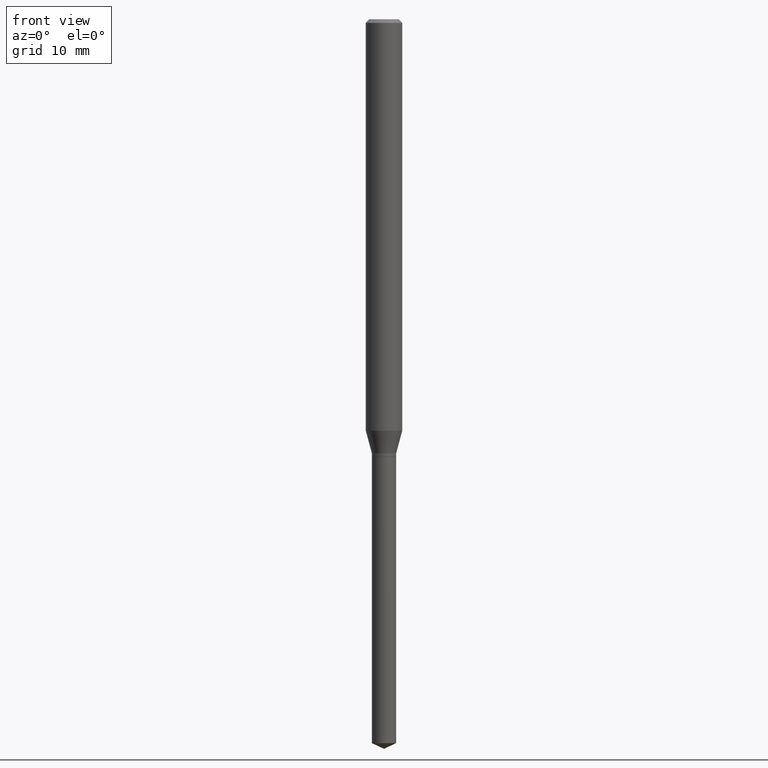
[diagram: clean part render]
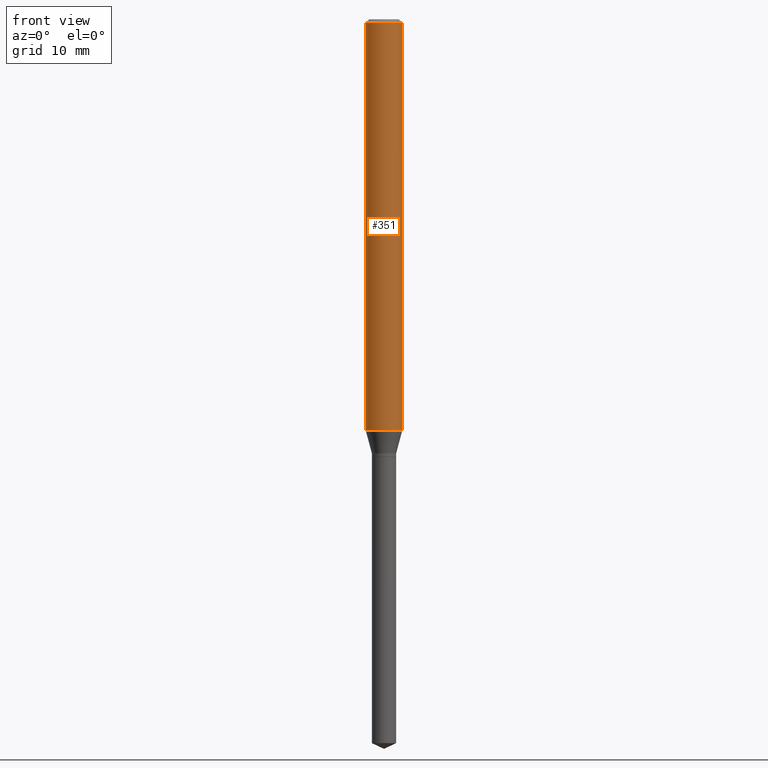
[diagram: same view with one face highlighted and labeled with its STEP entity id]
A machine part, front view. The second image highlights one B-rep face of the part: STEP entity #351.
In plain terms, the highlighted cylindrical surface (edge-blend (fillet) strip) has radius 1.4999 mm, axis along (-0, 0, 1).
Its self-contained STEP definition (entity closure, byte-faithful):
#13 = DIRECTION ( 'NONE',  ( 1.000000000000000000, -6.982962677686271444E-15, 0.000000000000000000 ) ) ;
#18 = CARTESIAN_POINT ( 'NONE',  ( 0.05904999999999999832, -4.535783407291118600E-16, -0.01181000000000007218 ) ) ;
#29 = AXIS2_PLACEMENT_3D ( 'NONE', #124, #384, #46 ) ;
#46 = DIRECTION ( 'NONE',  ( 1.000000000000000000, -6.982962677686266711E-15, 4.876176775795936353E-29 ) ) ;
#78 = CARTESIAN_POINT ( 'NONE',  ( 0.05905000000000015098, -5.062224072313895982E-15, -1.331778599090893245 ) ) ;
#80 = ORIENTED_EDGE ( 'NONE', *, *, #176, .F. ) ;
#83 = EDGE_CURVE ( 'NONE', #383, #328, #166, .T. ) ;
#84 = ORIENTED_EDGE ( 'NONE', *, *, #418, .T. ) ;
#85 = CARTESIAN_POINT ( 'NONE',  ( 3.256823020821720697E-29, -4.649880126196521062E-15, -1.331778599090893245 ) ) ;
#93 = VECTOR ( 'NONE', #309, 39.37007874015748143 ) ;
#117 = DIRECTION ( 'NONE',  ( 1.000000000000000000, -6.982962677686266711E-15, 0.000000000000000000 ) ) ;
#122 = CYLINDRICAL_SURFACE ( 'NONE', #29, 0.05905000000000007465 ) ;
#124 = CARTESIAN_POINT ( 'NONE',  ( 0.000000000000000000, 0.000000000000000000, 0.000000000000000000 ) ) ;
#127 = DIRECTION ( 'NONE',  ( -2.445468806185136597E-29, 3.491481338843145583E-15, 1.000000000000000000 ) ) ;
#166 = LINE ( 'NONE', #280, #444 ) ;
#173 = CARTESIAN_POINT ( 'NONE',  ( -0.05905000000000015098, -4.230304640730180780E-15, -1.331778599090893245 ) ) ;
#176 = EDGE_CURVE ( 'NONE', #328, #349, #363, .T. ) ;
#193 = ORIENTED_EDGE ( 'NONE', *, *, #83, .F. ) ;
#205 = FACE_OUTER_BOUND ( 'NONE', #231, .T. ) ;
#216 = VERTEX_POINT ( 'NONE', #78 ) ;
#221 = CARTESIAN_POINT ( 'NONE',  ( 2.888098660104664204E-31, -4.123439461173780263E-17, -0.01181000000000007218 ) ) ;
#231 = EDGE_LOOP ( 'NONE', ( #193, #84, #336, #80 ) ) ;
#232 = CARTESIAN_POINT ( 'NONE',  ( 0.05905000000000007465, -4.123439461173745750E-16, 2.879382386107504074E-30 ) ) ;
#280 = CARTESIAN_POINT ( 'NONE',  ( -0.05905000000000007465, 4.195754854663396902E-16, -2.904631170795525395E-30 ) ) ;
#309 = DIRECTION ( 'NONE',  ( -2.445468806185136877E-29, 3.491481338843145188E-15, 1.000000000000000000 ) ) ;
#313 = CARTESIAN_POINT ( 'NONE',  ( -0.05904999999999999832, -1.925981774937789113E-15, -0.01181000000000007218 ) ) ;
#315 = DIRECTION ( 'NONE',  ( -2.445468806185136877E-29, 3.491481338843145188E-15, 1.000000000000000000 ) ) ;
#327 = EDGE_CURVE ( 'NONE', #216, #349, #350, .T. ) ;
#328 = VERTEX_POINT ( 'NONE', #313 ) ;
#336 = ORIENTED_EDGE ( 'NONE', *, *, #327, .T. ) ;
#349 = VERTEX_POINT ( 'NONE', #18 ) ;
#350 = LINE ( 'NONE', #232, #93 ) ;
#351 = ADVANCED_FACE ( 'NONE', ( #205 ), #122, .T. ) ;
#358 = AXIS2_PLACEMENT_3D ( 'NONE', #221, #490, #117 ) ;
#363 = CIRCLE ( 'NONE', #358, 0.05904999999999999832 ) ;
#364 = AXIS2_PLACEMENT_3D ( 'NONE', #85, #127, #13 ) ;
#383 = VERTEX_POINT ( 'NONE', #173 ) ;
#384 = DIRECTION ( 'NONE',  ( -2.445468806185136597E-29, 3.491481338843145583E-15, 1.000000000000000000 ) ) ;
#418 = EDGE_CURVE ( 'NONE', #383, #216, #484, .T. ) ;
#444 = VECTOR ( 'NONE', #315, 39.37007874015748143 ) ;
#484 = CIRCLE ( 'NONE', #364, 0.05905000000000015098 ) ;
#490 = DIRECTION ( 'NONE',  ( -2.445468806185136597E-29, 3.491481338843145583E-15, 1.000000000000000000 ) ) ;